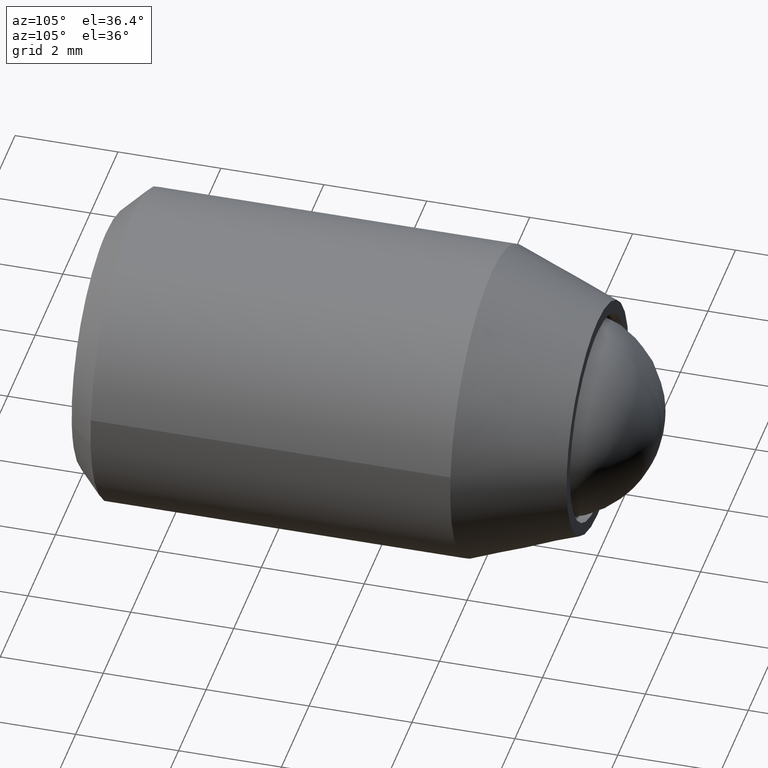
[diagram: clean part render]
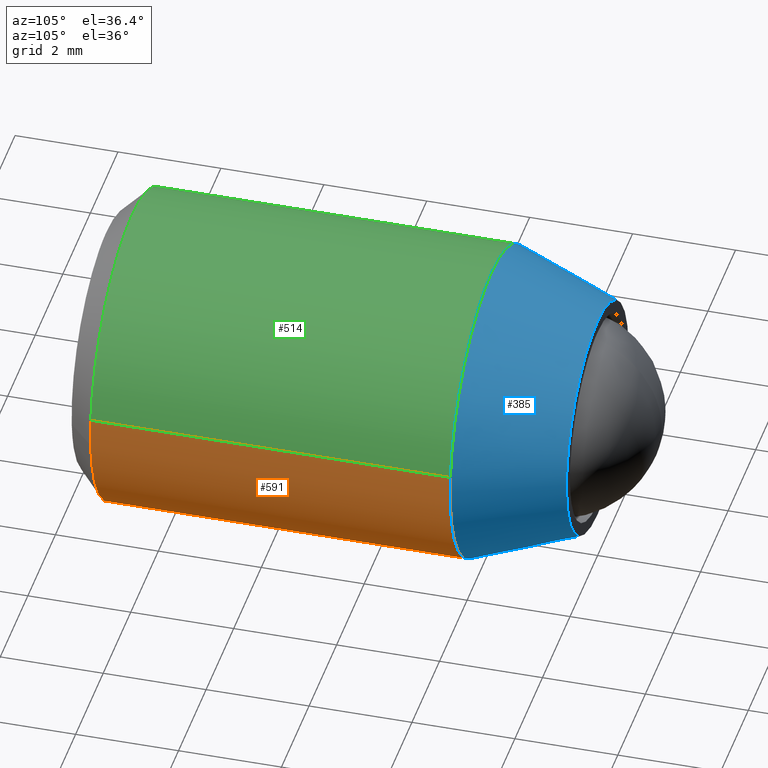
[diagram: same view with three faces highlighted in distinct colors, each labeled with its STEP entity id]
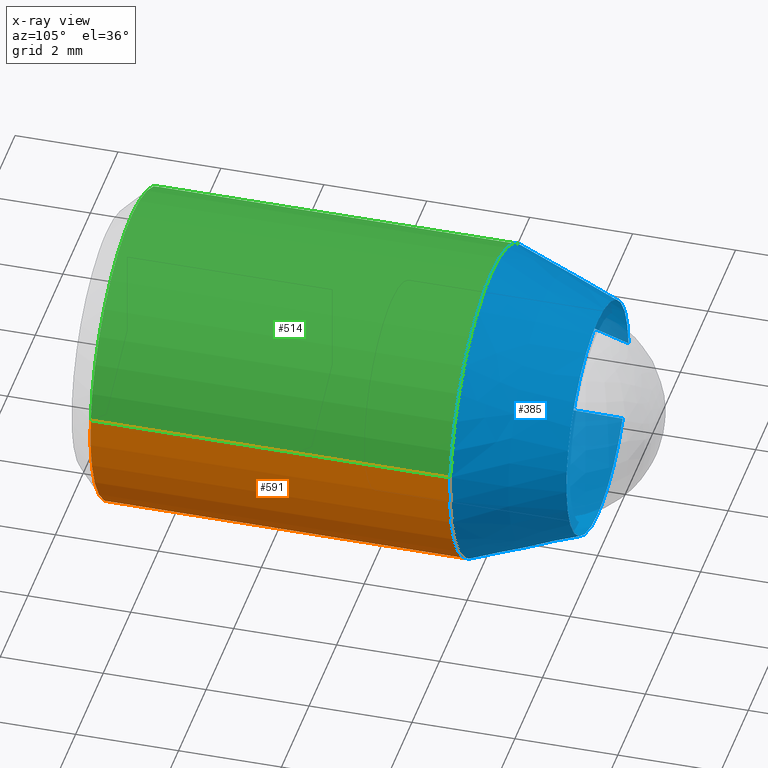
[diagram: x-ray of the same camera — body ghosted, the three highlighted faces saturated]
A machine part, auxiliary view with three faces highlighted in distinct colors.
The next image is the same camera in x-ray (body ghosted, the three faces saturated) — at least one of them is partly hidden behind the body in this view.
Their STEP definitions:

[orange] entity #591 — the highlighted face is a freeform B-spline surface patch.
#309=CARTESIAN_POINT('',(-2.994404426727895,-2.060607999420808,0.183145100744531));
#310=VERTEX_POINT('',#309);
#331=CARTESIAN_POINT('',(2.980407836975965,-2.060608000000000,0.342299759402765));
#332=VERTEX_POINT('',#331);
#346=CARTESIAN_POINT('',(0.0,-2.060608000000000,-3.000000000000001));
#347=VERTEX_POINT('',#346);
#348=CARTESIAN_POINT('',(0.0,-2.060608000000000,-3.000000000000001));
#349=CARTESIAN_POINT('',(3.0,-2.060607999999999,-3.0));
#350=CARTESIAN_POINT('',(3.0,-2.060608000000000,-6.765950E-016));
#351=CARTESIAN_POINT('',(2.999999999999999,-2.060607999999999,0.171710576636475));
#352=CARTESIAN_POINT('',(2.980407836975965,-2.060608000000001,0.342299759402765));
#360=(BOUNDED_CURVE()B_SPLINE_CURVE(2,(#348,#349,#350,#351,#352),.UNSPECIFIED.,.F.,.U.)B_SPLINE_CURVE_WITH_KNOTS((3,2,3),(0.0,0.250000000000000,0.269767628977231),.UNSPECIFIED.)CURVE()GEOMETRIC_REPRESENTATION_ITEM()RATIONAL_B_SPLINE_CURVE((1.0,0.707106781186548,1.0,0.976840782082195,0.957343986782005))REPRESENTATION_ITEM(''));
#361=EDGE_CURVE('',#347,#332,#360,.T.);
#363=CARTESIAN_POINT('',(-2.432920718911957,-2.060608000000046,-1.755248351512978));
#364=VERTEX_POINT('',#363);
#365=CARTESIAN_POINT('',(-2.432920718911957,-2.060608000000047,-1.755248351512978));
#366=CARTESIAN_POINT('',(-1.534885586872079,-2.060608000000000,-3.000000000000000));
#367=CARTESIAN_POINT('',(0.0,-2.060608000000000,-3.000000000000001));
#375=(BOUNDED_CURVE()B_SPLINE_CURVE(2,(#365,#366,#367),.UNSPECIFIED.,.F.,.U.)B_SPLINE_CURVE_WITH_KNOTS((3,3),(0.850743050382044,1.0),.UNSPECIFIED.)CURVE()GEOMETRIC_REPRESENTATION_ITEM()RATIONAL_B_SPLINE_CURVE((0.859068214727324,0.825134606384479,1.0))REPRESENTATION_ITEM(''));
#376=EDGE_CURVE('',#364,#347,#375,.T.);
#416=CARTESIAN_POINT('',(-2.994404426727895,-2.060607999420808,0.183145100744531));
#417=CARTESIAN_POINT('',(-3.000000000000000,-2.060608000000000,0.091658030246191));
#418=CARTESIAN_POINT('',(-3.0,-2.060608000000000,-6.765950E-016));
#419=CARTESIAN_POINT('',(-3.000000000000000,-2.060608000000000,-0.969229136035489));
#420=CARTESIAN_POINT('',(-2.432920718911956,-2.060608000000046,-1.755248351512978));
#428=(BOUNDED_CURVE()B_SPLINE_CURVE(2,(#416,#417,#418,#419,#420),.UNSPECIFIED.,.F.,.U.)B_SPLINE_CURVE_WITH_KNOTS((3,2,3),(0.739332992081915,0.750000000000000,0.850743050382045),.UNSPECIFIED.)CURVE()GEOMETRIC_REPRESENTATION_ITEM()RATIONAL_B_SPLINE_CURVE((0.976072105625896,0.987502822863054,1.0,0.881972174802068,0.859068214727324))REPRESENTATION_ITEM(''));
#429=EDGE_CURVE('',#310,#364,#428,.T.);
#453=CARTESIAN_POINT('',(2.980407694089560,-9.050000000000003,0.342301003519939));
#454=VERTEX_POINT('',#453);
#470=CARTESIAN_POINT('',(2.980407836975965,-2.060608000000000,0.342299759402765));
#471=CARTESIAN_POINT('',(2.980407694089560,-9.050000000000003,0.342301003519939));
#472=QUASI_UNIFORM_CURVE('',1,(#470,#471),.UNSPECIFIED.,.F.,.U.);
#473=EDGE_CURVE('',#332,#454,#472,.T.);
#477=CARTESIAN_POINT('',(-2.994404411160120,-9.050000000000001,0.183145358731109));
#478=VERTEX_POINT('',#477);
#479=CARTESIAN_POINT('',(-2.994404426727895,-2.060607999420808,0.183145100744531));
#480=CARTESIAN_POINT('',(-2.994404411160120,-9.050000000000001,0.183145358731109));
#481=QUASI_UNIFORM_CURVE('',1,(#479,#480),.UNSPECIFIED.,.F.,.U.);
#482=EDGE_CURVE('',#310,#478,#481,.T.);
#515=CARTESIAN_POINT('',(-2.994404395265600,-1.885873199999999,0.183145618604570));
#516=CARTESIAN_POINT('',(-3.177550013870171,-1.885873200000000,-2.811258776661029));
#517=CARTESIAN_POINT('',(-0.183145618604571,-1.885873199999999,-2.994404395265601));
#518=CARTESIAN_POINT('',(2.811258776661029,-1.885873200000000,-3.177550013870172));
#519=CARTESIAN_POINT('',(2.994404395265600,-1.885873199999999,-0.183145618604572));
#520=CARTESIAN_POINT('',(3.010510915184334,-1.885873199999999,0.080193654289639));
#521=CARTESIAN_POINT('',(2.980407580307141,-1.885873199999999,0.342301994221081));
#522=CARTESIAN_POINT('',(-2.994404395265600,-9.229103170000002,0.183145618604570));
#523=CARTESIAN_POINT('',(-3.177550013870171,-9.229103170000002,-2.811258776661029));
#524=CARTESIAN_POINT('',(-0.183145618604571,-9.229103170000002,-2.994404395265601));
#525=CARTESIAN_POINT('',(2.811258776661029,-9.229103170000002,-3.177550013870172));
#526=CARTESIAN_POINT('',(2.994404395265600,-9.229103170000002,-0.183145618604572));
#527=CARTESIAN_POINT('',(3.010510915184334,-9.229103170000002,0.080193654289639));
#528=CARTESIAN_POINT('',(2.980407580307141,-9.229103170000002,0.342301994221081));
#536=(BOUNDED_SURFACE()B_SPLINE_SURFACE(2,1,((#515,#522),(#516,#523),(#517,#524),(#518,#525),(#519,#526),(#520,#527),(#521,#528)),.UNSPECIFIED.,.F.,.F.,.U.)B_SPLINE_SURFACE_WITH_KNOTS((3,2,2,3),(2,2),(0.0,4.970562748477139,9.941125496954278,10.537593026771541),(0.0,7.343229970000003),.UNSPECIFIED.)GEOMETRIC_REPRESENTATION_ITEM()RATIONAL_B_SPLINE_SURFACE(((1.0,1.0),(0.707106781186548,0.707106781186548),(1.0,1.0),(0.707106781186548,0.707106781186548),(1.0,1.0),(0.964852813742386,0.964852813742386),(0.938140952186599,0.938140952186599)))REPRESENTATION_ITEM('')SURFACE());
#537=CARTESIAN_POINT('',(2.990752001200102,-9.049999999998192,-0.235377287197445));
#538=VERTEX_POINT('',#537);
#539=CARTESIAN_POINT('',(2.990752001200101,-9.049999999998192,-0.235377287197445));
#540=CARTESIAN_POINT('',(3.000000000000000,-9.050000000000001,-0.117870321036840));
#541=CARTESIAN_POINT('',(3.0,-9.050000000000001,-6.765950E-016));
#542=CARTESIAN_POINT('',(2.999999999999999,-9.049999999999999,0.171710704595212));
#543=CARTESIAN_POINT('',(2.980407694089560,-9.050000000000003,0.342301003519939));
#551=(BOUNDED_CURVE()B_SPLINE_CURVE(2,(#539,#540,#541,#542,#543),.UNSPECIFIED.,.F.,.U.)B_SPLINE_CURVE_WITH_KNOTS((3,2,3),(0.236331300631189,0.250000000000000,0.269767643366915),.UNSPECIFIED.)CURVE()GEOMETRIC_REPRESENTATION_ITEM()RATIONAL_B_SPLINE_CURVE((0.969723356168522,0.983986122579502,1.0,0.976840765223631,0.957343958396942))REPRESENTATION_ITEM(''));
#552=EDGE_CURVE('',#538,#454,#551,.T.);
#553=ORIENTED_EDGE('',*,*,#552,.F.);
#554=CARTESIAN_POINT('',(0.0,-9.050000000000001,-3.000000000000001));
#555=VERTEX_POINT('',#554);
#556=CARTESIAN_POINT('',(0.0,-9.050000000000001,-3.000000000000001));
#557=CARTESIAN_POINT('',(2.773171474949010,-9.049999999999999,-3.000000000000000));
#558=CARTESIAN_POINT('',(2.990752001200102,-9.049999999998192,-0.235377287197445));
#566=(BOUNDED_CURVE()B_SPLINE_CURVE(2,(#556,#557,#558),.UNSPECIFIED.,.F.,.U.)B_SPLINE_CURVE_WITH_KNOTS((3,3),(0.0,0.236331300631189),.UNSPECIFIED.)CURVE()GEOMETRIC_REPRESENTATION_ITEM()RATIONAL_B_SPLINE_CURVE((1.0,0.723120658607046,0.969723356168522))REPRESENTATION_ITEM(''));
#567=EDGE_CURVE('',#555,#538,#566,.T.);
#568=ORIENTED_EDGE('',*,*,#567,.F.);
#569=CARTESIAN_POINT('',(-2.994404411160119,-9.050000000000001,0.183145358731109));
#570=CARTESIAN_POINT('',(-3.0,-9.050000000000001,0.091658029293647));
#571=CARTESIAN_POINT('',(-3.0,-9.050000000000001,-6.765950E-016));
#572=CARTESIAN_POINT('',(-3.0,-9.050000000000001,-3.0));
#573=CARTESIAN_POINT('',(0.0,-9.050000000000001,-3.000000000000001));
#581=(BOUNDED_CURVE()B_SPLINE_CURVE(2,(#569,#570,#571,#572,#573),.UNSPECIFIED.,.F.,.U.)B_SPLINE_CURVE_WITH_KNOTS((3,2,3),(0.739332992191385,0.750000000000000,1.0),.UNSPECIFIED.)CURVE()GEOMETRIC_REPRESENTATION_ITEM()RATIONAL_B_SPLINE_CURVE((0.976072105860512,0.987502822991306,1.0,0.707106781186548,1.0))REPRESENTATION_ITEM(''));
#582=EDGE_CURVE('',#478,#555,#581,.T.);
#583=ORIENTED_EDGE('',*,*,#582,.F.);
#584=ORIENTED_EDGE('',*,*,#482,.F.);
#585=ORIENTED_EDGE('',*,*,#429,.T.);
#586=ORIENTED_EDGE('',*,*,#376,.T.);
#587=ORIENTED_EDGE('',*,*,#361,.T.);
#588=ORIENTED_EDGE('',*,*,#473,.T.);
#589=EDGE_LOOP('',(#553,#568,#583,#584,#585,#586,#587,#588));
#590=FACE_OUTER_BOUND('',#589,.T.);
#591=ADVANCED_FACE('',(#590),#536,.T.);

[blue] entity #385 — the highlighted face is a freeform B-spline surface patch.
#234=CARTESIAN_POINT('',(-1.809484784690957,0.051515200000000,-1.305465961437498));
#235=CARTESIAN_POINT('',(-1.191122775734936,0.051515200000000,-2.162567318109237));
#236=CARTESIAN_POINT('',(-0.136214553837150,0.051515200000000,-2.227088268978794));
#237=CARTESIAN_POINT('',(2.090873715141643,0.051515200000000,-2.363302822815944));
#238=CARTESIAN_POINT('',(2.227088268978793,0.051515200000000,-0.136214553837151));
#239=CARTESIAN_POINT('',(2.363302822815943,0.051515200000000,2.090873715141642));
#240=CARTESIAN_POINT('',(0.136214553837150,0.051515200000000,2.227088268978792));
#241=CARTESIAN_POINT('',(-2.090873715141643,0.051515200000000,2.363302822815943));
#242=CARTESIAN_POINT('',(-2.227088268978793,0.051515200000000,0.136214553837149));
#243=CARTESIAN_POINT('',(-2.448506617267739,-2.113411079999999,-1.766492911264477));
#244=CARTESIAN_POINT('',(-1.611769285400990,-2.113411080000000,-2.926280692424700));
#245=CARTESIAN_POINT('',(-0.184318895223757,-2.113411080000000,-3.013587298422771));
#246=CARTESIAN_POINT('',(2.829268403199012,-2.113411080000000,-3.197906193646527));
#247=CARTESIAN_POINT('',(3.013587298422770,-2.113411080000000,-0.184318895223757));
#248=CARTESIAN_POINT('',(3.197906193646527,-2.113411080000000,2.829268403199012));
#249=CARTESIAN_POINT('',(0.184318895223757,-2.113411080000000,3.013587298422769));
#250=CARTESIAN_POINT('',(-2.829268403199012,-2.113411080000000,3.197906193646526));
#251=CARTESIAN_POINT('',(-3.013587298422770,-2.113411080000000,0.184318895223756));
#259=(BOUNDED_SURFACE()B_SPLINE_SURFACE(2,1,((#234,#243),(#235,#244),(#236,#245),(#237,#246),(#238,#247),(#239,#248),(#240,#249),(#241,#250),(#242,#251)),.UNSPECIFIED.,.F.,.F.,.U.)B_SPLINE_SURFACE_WITH_KNOTS((3,2,2,2,3),(2,2),(0.0,2.801347033007359,7.803752449091928,12.806157865176500,17.808563281261069),(0.0,2.303866434672635),.UNSPECIFIED.)GEOMETRIC_REPRESENTATION_ITEM()RATIONAL_B_SPLINE_SURFACE(((0.855662221768731,0.855662221768731),(0.835979797464467,0.835979797464467),(1.0,1.0),(0.707106781186548,0.707106781186548),(1.0,1.0),(0.707106781186548,0.707106781186548),(1.0,1.0),(0.707106781186548,0.707106781186548),(1.0,1.0)))REPRESENTATION_ITEM('')SURFACE());
#260=CARTESIAN_POINT('',(-1.824690539183465,-1.269605E-013,-1.316436263635491));
#261=VERTEX_POINT('',#260);
#262=CARTESIAN_POINT('',(0.0,0.0,-2.250000000000001));
#263=VERTEX_POINT('',#262);
#264=CARTESIAN_POINT('',(-1.824690539183464,-1.269605E-013,-1.316436263635491));
#265=CARTESIAN_POINT('',(-1.151164190152913,0.0,-2.250000000000000));
#266=CARTESIAN_POINT('',(0.0,0.0,-2.250000000000001));
#274=(BOUNDED_CURVE()B_SPLINE_CURVE(2,(#264,#265,#266),.UNSPECIFIED.,.F.,.U.)B_SPLINE_CURVE_WITH_KNOTS((3,3),(0.850743050382167,1.0),.UNSPECIFIED.)CURVE()GEOMETRIC_REPRESENTATION_ITEM()RATIONAL_B_SPLINE_CURVE((0.859068214727268,0.825134606384623,1.0))REPRESENTATION_ITEM(''));
#275=EDGE_CURVE('',#261,#263,#274,.T.);
#276=ORIENTED_EDGE('',*,*,#275,.T.);
#277=CARTESIAN_POINT('',(0.0,0.0,2.249999999999999));
#278=VERTEX_POINT('',#277);
#279=CARTESIAN_POINT('',(0.0,0.0,-2.250000000000001));
#280=CARTESIAN_POINT('',(2.250000000000000,0.0,-2.250000000000000));
#281=CARTESIAN_POINT('',(2.250000000000000,0.0,-6.765950E-016));
#282=CARTESIAN_POINT('',(2.250000000000000,0.0,2.249999999999999));
#283=CARTESIAN_POINT('',(0.0,0.0,2.249999999999999));
#291=(BOUNDED_CURVE()B_SPLINE_CURVE(2,(#279,#280,#281,#282,#283),.UNSPECIFIED.,.F.,.U.)B_SPLINE_CURVE_WITH_KNOTS((3,2,3),(0.0,0.250000000000000,0.500000000000000),.UNSPECIFIED.)CURVE()GEOMETRIC_REPRESENTATION_ITEM()RATIONAL_B_SPLINE_CURVE((1.0,0.707106781186547,1.0,0.707106781186547,1.0))REPRESENTATION_ITEM(''));
#292=EDGE_CURVE('',#263,#278,#291,.T.);
#293=ORIENTED_EDGE('',*,*,#292,.T.);
#294=CARTESIAN_POINT('',(-2.245803296449229,-8.940522E-013,0.137359213958318));
#295=VERTEX_POINT('',#294);
#296=CARTESIAN_POINT('',(0.0,0.0,2.249999999999999));
#297=CARTESIAN_POINT('',(-2.116588650528630,0.0,2.250000000000000));
#298=CARTESIAN_POINT('',(-2.245803296449229,-8.940522E-013,0.137359213958318));
#306=(BOUNDED_CURVE()B_SPLINE_CURVE(2,(#296,#297,#298),.UNSPECIFIED.,.F.,.U.)B_SPLINE_CURVE_WITH_KNOTS((3,3),(0.500000000000000,0.739332962241221),.UNSPECIFIED.)CURVE()GEOMETRIC_REPRESENTATION_ITEM()RATIONAL_B_SPLINE_CURVE((1.0,0.719603993284041,0.976072041671600))REPRESENTATION_ITEM(''));
#307=EDGE_CURVE('',#278,#295,#306,.T.);
#308=ORIENTED_EDGE('',*,*,#307,.T.);
#309=CARTESIAN_POINT('',(-2.994404426727895,-2.060607999420808,0.183145100744531));
#310=VERTEX_POINT('',#309);
#311=CARTESIAN_POINT('',(-2.245803296449229,-8.940522E-013,0.137359213958318));
#312=CARTESIAN_POINT('',(-2.994404426727895,-2.060607999420808,0.183145100744531));
#313=QUASI_UNIFORM_CURVE('',1,(#311,#312),.UNSPECIFIED.,.F.,.U.);
#314=EDGE_CURVE('',#295,#310,#313,.T.);
#315=ORIENTED_EDGE('',*,*,#314,.T.);
#316=CARTESIAN_POINT('',(0.0,-2.060608000000000,2.999999999999999));
#317=VERTEX_POINT('',#316);
#318=CARTESIAN_POINT('',(0.0,-2.060608000000000,2.999999999999999));
#319=CARTESIAN_POINT('',(-2.822118689681421,-2.060607999999999,2.999999999999999));
#320=CARTESIAN_POINT('',(-2.994404426727895,-2.060607999420808,0.183145100744531));
#328=(BOUNDED_CURVE()B_SPLINE_CURVE(2,(#318,#319,#320),.UNSPECIFIED.,.F.,.U.)B_SPLINE_CURVE_WITH_KNOTS((3,3),(0.500000000000000,0.739332992081915),.UNSPECIFIED.)CURVE()GEOMETRIC_REPRESENTATION_ITEM()RATIONAL_B_SPLINE_CURVE((1.0,0.719603958323494,0.976072105625896))REPRESENTATION_ITEM(''));
#329=EDGE_CURVE('',#317,#310,#328,.T.);
#330=ORIENTED_EDGE('',*,*,#329,.F.);
#331=CARTESIAN_POINT('',(2.980407836975965,-2.060608000000000,0.342299759402765));
#332=VERTEX_POINT('',#331);
#333=CARTESIAN_POINT('',(2.980407836975965,-2.060608000000001,0.342299759402765));
#334=CARTESIAN_POINT('',(2.675171036283069,-2.060607999999999,2.999999999999999));
#335=CARTESIAN_POINT('',(0.0,-2.060608000000000,2.999999999999999));
#343=(BOUNDED_CURVE()B_SPLINE_CURVE(2,(#333,#334,#335),.UNSPECIFIED.,.F.,.U.)B_SPLINE_CURVE_WITH_KNOTS((3,3),(0.269767628977231,0.500000000000000),.UNSPECIFIED.)CURVE()GEOMETRIC_REPRESENTATION_ITEM()RATIONAL_B_SPLINE_CURVE((0.957343986782005,0.730265999104353,1.0))REPRESENTATION_ITEM(''));
#344=EDGE_CURVE('',#332,#317,#343,.T.);
#345=ORIENTED_EDGE('',*,*,#344,.F.);
#346=CARTESIAN_POINT('',(0.0,-2.060608000000000,-3.000000000000001));
#347=VERTEX_POINT('',#346);
#348=CARTESIAN_POINT('',(0.0,-2.060608000000000,-3.000000000000001));
#349=CARTESIAN_POINT('',(3.0,-2.060607999999999,-3.0));
#350=CARTESIAN_POINT('',(3.0,-2.060608000000000,-6.765950E-016));
#351=CARTESIAN_POINT('',(2.999999999999999,-2.060607999999999,0.171710576636475));
#352=CARTESIAN_POINT('',(2.980407836975965,-2.060608000000001,0.342299759402765));
#360=(BOUNDED_CURVE()B_SPLINE_CURVE(2,(#348,#349,#350,#351,#352),.UNSPECIFIED.,.F.,.U.)B_SPLINE_CURVE_WITH_KNOTS((3,2,3),(0.0,0.250000000000000,0.269767628977231),.UNSPECIFIED.)CURVE()GEOMETRIC_REPRESENTATION_ITEM()RATIONAL_B_SPLINE_CURVE((1.0,0.707106781186548,1.0,0.976840782082195,0.957343986782005))REPRESENTATION_ITEM(''));
#361=EDGE_CURVE('',#347,#332,#360,.T.);
#362=ORIENTED_EDGE('',*,*,#361,.F.);
#363=CARTESIAN_POINT('',(-2.432920718911957,-2.060608000000046,-1.755248351512978));
#364=VERTEX_POINT('',#363);
#365=CARTESIAN_POINT('',(-2.432920718911957,-2.060608000000047,-1.755248351512978));
#366=CARTESIAN_POINT('',(-1.534885586872079,-2.060608000000000,-3.000000000000000));
#367=CARTESIAN_POINT('',(0.0,-2.060608000000000,-3.000000000000001));
#375=(BOUNDED_CURVE()B_SPLINE_CURVE(2,(#365,#366,#367),.UNSPECIFIED.,.F.,.U.)B_SPLINE_CURVE_WITH_KNOTS((3,3),(0.850743050382044,1.0),.UNSPECIFIED.)CURVE()GEOMETRIC_REPRESENTATION_ITEM()RATIONAL_B_SPLINE_CURVE((0.859068214727324,0.825134606384479,1.0))REPRESENTATION_ITEM(''));
#376=EDGE_CURVE('',#364,#347,#375,.T.);
#377=ORIENTED_EDGE('',*,*,#376,.F.);
#378=CARTESIAN_POINT('',(-1.824690539183465,-1.269605E-013,-1.316436263635491));
#379=CARTESIAN_POINT('',(-2.432920718911957,-2.060608000000046,-1.755248351512978));
#380=QUASI_UNIFORM_CURVE('',1,(#378,#379),.UNSPECIFIED.,.F.,.U.);
#381=EDGE_CURVE('',#261,#364,#380,.T.);
#382=ORIENTED_EDGE('',*,*,#381,.F.);
#383=EDGE_LOOP('',(#276,#293,#308,#315,#330,#345,#362,#377,#382));
#384=FACE_OUTER_BOUND('',#383,.T.);
#385=ADVANCED_FACE('',(#384),#259,.T.);

[green] entity #514 — the highlighted face is a freeform B-spline surface patch.
#309=CARTESIAN_POINT('',(-2.994404426727895,-2.060607999420808,0.183145100744531));
#310=VERTEX_POINT('',#309);
#316=CARTESIAN_POINT('',(0.0,-2.060608000000000,2.999999999999999));
#317=VERTEX_POINT('',#316);
#318=CARTESIAN_POINT('',(0.0,-2.060608000000000,2.999999999999999));
#319=CARTESIAN_POINT('',(-2.822118689681421,-2.060607999999999,2.999999999999999));
#320=CARTESIAN_POINT('',(-2.994404426727895,-2.060607999420808,0.183145100744531));
#328=(BOUNDED_CURVE()B_SPLINE_CURVE(2,(#318,#319,#320),.UNSPECIFIED.,.F.,.U.)B_SPLINE_CURVE_WITH_KNOTS((3,3),(0.500000000000000,0.739332992081915),.UNSPECIFIED.)CURVE()GEOMETRIC_REPRESENTATION_ITEM()RATIONAL_B_SPLINE_CURVE((1.0,0.719603958323494,0.976072105625896))REPRESENTATION_ITEM(''));
#329=EDGE_CURVE('',#317,#310,#328,.T.);
#331=CARTESIAN_POINT('',(2.980407836975965,-2.060608000000000,0.342299759402765));
#332=VERTEX_POINT('',#331);
#333=CARTESIAN_POINT('',(2.980407836975965,-2.060608000000001,0.342299759402765));
#334=CARTESIAN_POINT('',(2.675171036283069,-2.060607999999999,2.999999999999999));
#335=CARTESIAN_POINT('',(0.0,-2.060608000000000,2.999999999999999));
#343=(BOUNDED_CURVE()B_SPLINE_CURVE(2,(#333,#334,#335),.UNSPECIFIED.,.F.,.U.)B_SPLINE_CURVE_WITH_KNOTS((3,3),(0.269767628977231,0.500000000000000),.UNSPECIFIED.)CURVE()GEOMETRIC_REPRESENTATION_ITEM()RATIONAL_B_SPLINE_CURVE((0.957343986782005,0.730265999104353,1.0))REPRESENTATION_ITEM(''));
#344=EDGE_CURVE('',#332,#317,#343,.T.);
#435=CARTESIAN_POINT('',(2.980407580307141,-1.885873199999999,0.342301994221081));
#436=CARTESIAN_POINT('',(2.693445457758243,-1.885873199999999,2.840867879739621));
#437=CARTESIAN_POINT('',(0.183145618604571,-1.885873199999999,2.994404395265599));
#438=CARTESIAN_POINT('',(-2.811258776661029,-1.885873200000000,3.177550013870171));
#439=CARTESIAN_POINT('',(-2.994404395265600,-1.885873199999999,0.183145618604570));
#440=CARTESIAN_POINT('',(2.980407580307141,-9.229103170000002,0.342301994221081));
#441=CARTESIAN_POINT('',(2.693445457758243,-9.229103170000000,2.840867879739621));
#442=CARTESIAN_POINT('',(0.183145618604571,-9.229103170000002,2.994404395265599));
#443=CARTESIAN_POINT('',(-2.811258776661029,-9.229103170000002,3.177550013870171));
#444=CARTESIAN_POINT('',(-2.994404395265600,-9.229103170000002,0.183145618604570));
#452=(BOUNDED_SURFACE()B_SPLINE_SURFACE(2,1,((#435,#440),(#436,#441),(#437,#442),(#438,#443),(#439,#444)),.UNSPECIFIED.,.F.,.F.,.U.)B_SPLINE_SURFACE_WITH_KNOTS((3,2,3),(2,2),(0.0,4.374095218659882,9.344657967137021),(0.0,7.343229970000003),.UNSPECIFIED.)GEOMETRIC_REPRESENTATION_ITEM()RATIONAL_B_SPLINE_SURFACE(((0.938140952186599,0.938140952186599),(0.742253967444162,0.742253967444162),(1.0,1.0),(0.707106781186548,0.707106781186548),(1.0,1.0)))REPRESENTATION_ITEM('')SURFACE());
#453=CARTESIAN_POINT('',(2.980407694089560,-9.050000000000003,0.342301003519939));
#454=VERTEX_POINT('',#453);
#455=CARTESIAN_POINT('',(0.0,-9.050000000000001,2.999999999999999));
#456=VERTEX_POINT('',#455);
#457=CARTESIAN_POINT('',(2.980407694089559,-9.050000000000003,0.342301003519939));
#458=CARTESIAN_POINT('',(2.675170807325332,-9.050000000000001,2.999999999999999));
#459=CARTESIAN_POINT('',(0.0,-9.050000000000001,2.999999999999999));
#467=(BOUNDED_CURVE()B_SPLINE_CURVE(2,(#457,#458,#459),.UNSPECIFIED.,.F.,.U.)B_SPLINE_CURVE_WITH_KNOTS((3,3),(0.269767643366915,0.500000000000000),.UNSPECIFIED.)CURVE()GEOMETRIC_REPRESENTATION_ITEM()RATIONAL_B_SPLINE_CURVE((0.957343958396942,0.730266015962916,1.0))REPRESENTATION_ITEM(''));
#468=EDGE_CURVE('',#454,#456,#467,.T.);
#469=ORIENTED_EDGE('',*,*,#468,.F.);
#470=CARTESIAN_POINT('',(2.980407836975965,-2.060608000000000,0.342299759402765));
#471=CARTESIAN_POINT('',(2.980407694089560,-9.050000000000003,0.342301003519939));
#472=QUASI_UNIFORM_CURVE('',1,(#470,#471),.UNSPECIFIED.,.F.,.U.);
#473=EDGE_CURVE('',#332,#454,#472,.T.);
#474=ORIENTED_EDGE('',*,*,#473,.F.);
#475=ORIENTED_EDGE('',*,*,#344,.T.);
#476=ORIENTED_EDGE('',*,*,#329,.T.);
#477=CARTESIAN_POINT('',(-2.994404411160120,-9.050000000000001,0.183145358731109));
#478=VERTEX_POINT('',#477);
#479=CARTESIAN_POINT('',(-2.994404426727895,-2.060607999420808,0.183145100744531));
#480=CARTESIAN_POINT('',(-2.994404411160120,-9.050000000000001,0.183145358731109));
#481=QUASI_UNIFORM_CURVE('',1,(#479,#480),.UNSPECIFIED.,.F.,.U.);
#482=EDGE_CURVE('',#310,#478,#481,.T.);
#483=ORIENTED_EDGE('',*,*,#482,.T.);
#484=CARTESIAN_POINT('',(-2.990752001200102,-9.049999999998192,0.235377287197443));
#485=VERTEX_POINT('',#484);
#486=CARTESIAN_POINT('',(-2.990752001200102,-9.049999999998192,0.235377287197443));
#487=CARTESIAN_POINT('',(-2.992806128093833,-9.050000000000003,0.209277130311658));
#488=CARTESIAN_POINT('',(-2.994404411160120,-9.050000000000001,0.183145358731109));
#496=(BOUNDED_CURVE()B_SPLINE_CURVE(2,(#486,#487,#488),.UNSPECIFIED.,.F.,.U.)B_SPLINE_CURVE_WITH_KNOTS((3,3),(0.736331300631189,0.739332992191385),.UNSPECIFIED.)CURVE()GEOMETRIC_REPRESENTATION_ITEM()RATIONAL_B_SPLINE_CURVE((0.969723356168522,0.972855506814733,0.976072105860511))REPRESENTATION_ITEM(''));
#497=EDGE_CURVE('',#485,#478,#496,.T.);
#498=ORIENTED_EDGE('',*,*,#497,.F.);
#499=CARTESIAN_POINT('',(0.0,-9.050000000000001,2.999999999999999));
#500=CARTESIAN_POINT('',(-2.773171474949025,-9.050000000000001,3.000000000000000));
#501=CARTESIAN_POINT('',(-2.990752001200101,-9.049999999998192,0.235377287197443));
#509=(BOUNDED_CURVE()B_SPLINE_CURVE(2,(#499,#500,#501),.UNSPECIFIED.,.F.,.U.)B_SPLINE_CURVE_WITH_KNOTS((3,3),(0.500000000000000,0.736331300631190),.UNSPECIFIED.)CURVE()GEOMETRIC_REPRESENTATION_ITEM()RATIONAL_B_SPLINE_CURVE((1.0,0.723120658607045,0.969723356168524))REPRESENTATION_ITEM(''));
#510=EDGE_CURVE('',#456,#485,#509,.T.);
#511=ORIENTED_EDGE('',*,*,#510,.F.);
#512=EDGE_LOOP('',(#469,#474,#475,#476,#483,#498,#511));
#513=FACE_OUTER_BOUND('',#512,.T.);
#514=ADVANCED_FACE('',(#513),#452,.T.);